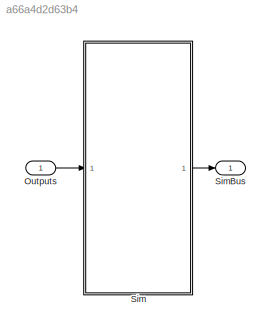
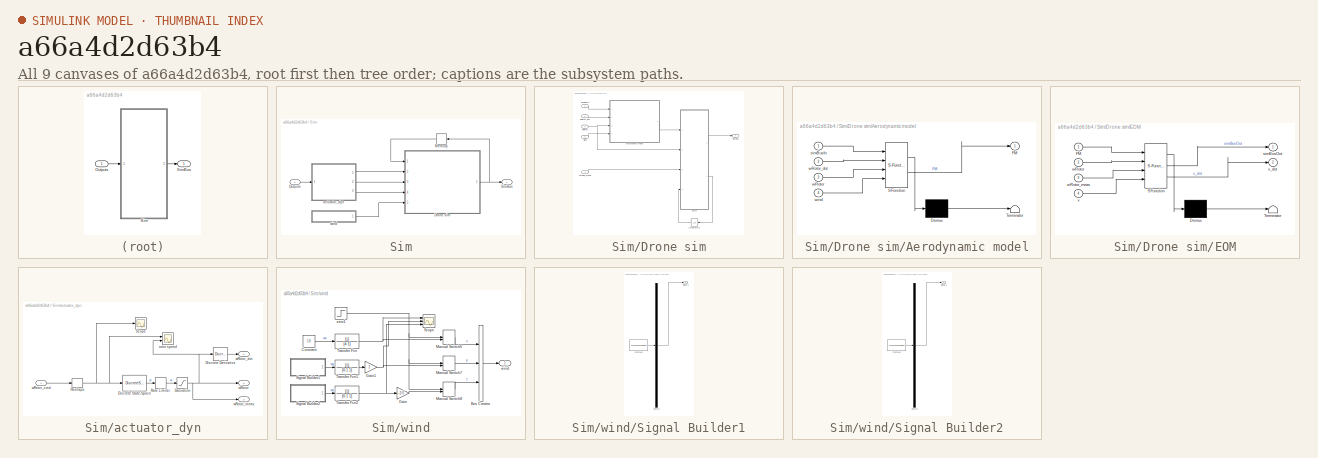
[diagram: thumbnail index - all 9 canvases of the model, root first then tree order]
MODEL slx_a66a4d2d63b4
KIND model
CONFIG AbsTol = auto
CONFIG EnableMultiTasking = off
CONFIG FixedStep = 1/simVars.freq
CONFIG MaxStep = auto
CONFIG MinStep = auto
CONFIG RelTol = 1e-3
CONFIG SampleTimeConstraint = Unconstrained
CONFIG SolverName = ode4
CONFIG StartTime = 0.0
CONFIG StopTime = 10.0
BLOCK [Inport] Outputs
BLOCK [SubSystem] Sim
  Ports = [1, 1]
  RequestExecContextInheritance = off
BLOCK [SubSystem] Sim/Drone sim
  Ports = [5, 1]
  RequestExecContextInheritance = off
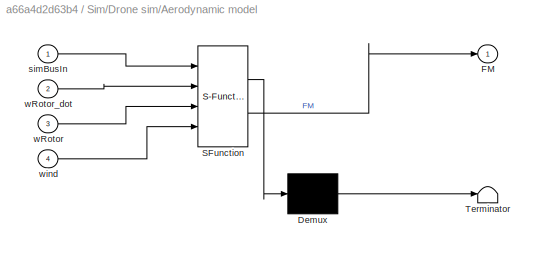
BLOCK [SubSystem] Sim/Drone sim/Aerodynamic model
  ErrorFcn = Stateflow.Translate.translate
  PermitHierarchicalResolution = ExplicitOnly
  Ports = [4, 1]
  RequestExecContextInheritance = off
  SFBlockType = MATLAB Function
  TreatAsAtomicUnit = on
BLOCK [Demux] Sim/Drone sim/Aerodynamic model/ Demux 
  Outputs = 1
  Ports = [1, 1]
BLOCK [S-Function] Sim/Drone sim/Aerodynamic model/ SFunction 
  EnableBusSupport = on
  FunctionName = sf_sfun
  Parameters = simVars
  PortCounts = [4 2]
  Ports = [4, 2]
  SFcnIsStateOwnerBlock = off
  SFunctionDeploymentMode = off
  Tag = Stateflow S-Function 2
BLOCK [Terminator] Sim/Drone sim/Aerodynamic model/ Terminator 
BLOCK [Outport] Sim/Drone sim/Aerodynamic model/FM
  VectorParamsAs1DForOutWhenUnconnected = off
BLOCK [Inport] Sim/Drone sim/Aerodynamic model/simBusIn
BLOCK [Inport] Sim/Drone sim/Aerodynamic model/wRotor
  Port = 3
BLOCK [Inport] Sim/Drone sim/Aerodynamic model/wRotor_dot
  Port = 2
BLOCK [Inport] Sim/Drone sim/Aerodynamic model/wind
  Port = 4
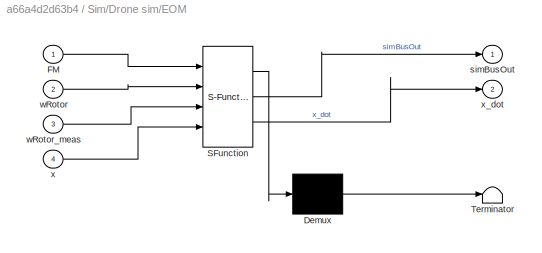
BLOCK [SubSystem] Sim/Drone sim/EOM
  ErrorFcn = Stateflow.Translate.translate
  PermitHierarchicalResolution = ExplicitOnly
  Ports = [4, 2]
  RequestExecContextInheritance = off
  SFBlockType = MATLAB Function
  TreatAsAtomicUnit = on
BLOCK [Demux] Sim/Drone sim/EOM/ Demux 
  Outputs = 1
  Ports = [1, 1]
BLOCK [S-Function] Sim/Drone sim/EOM/ SFunction 
  EnableBusSupport = on
  FunctionName = sf_sfun
  Parameters = simVars
  PortCounts = [4 3]
  Ports = [4, 3]
  SFcnIsStateOwnerBlock = off
  SFunctionDeploymentMode = off
  Tag = Stateflow S-Function 1
BLOCK [Terminator] Sim/Drone sim/EOM/ Terminator 
BLOCK [Inport] Sim/Drone sim/EOM/FM
BLOCK [Outport] Sim/Drone sim/EOM/simBusOut
  VectorParamsAs1DForOutWhenUnconnected = off
BLOCK [Inport] Sim/Drone sim/EOM/wRotor
  Port = 2
BLOCK [Inport] Sim/Drone sim/EOM/wRotor_meas
  Port = 3
BLOCK [Inport] Sim/Drone sim/EOM/x
  Port = 4
BLOCK [Outport] Sim/Drone sim/EOM/x_dot
  Port = 2
  VectorParamsAs1DForOutWhenUnconnected = off
BLOCK [Integrator] Sim/Drone sim/Integrator3
  InitialCondition = [simVars.pos0,simVars.vel0,simVars.q0,simVars.omega0,simVars.att0]
  LowerSaturationLimit = -100
  NameLocation = top
  Ports = [1, 1]
  UpperSaturationLimit = 100
BLOCK [Outport] Sim/Drone sim/SimBus
  VectorParamsAs1DForOutWhenUnconnected = off
BLOCK [Inport] Sim/Drone sim/omega_meas
  Port = 4
BLOCK [Inport] Sim/Drone sim/simBusIn
BLOCK [Inport] Sim/Drone sim/wRotor
  Port = 3
BLOCK [Inport] Sim/Drone sim/wRotor_dot
  Port = 2
BLOCK [Inport] Sim/Drone sim/wind
  Port = 5
BLOCK [Memory] Sim/Memory
  NameLocation = top
BLOCK [Inport] Sim/Outputs
BLOCK [Outport] Sim/SimBus
  OutDataTypeStr = Bus: simBus
  VectorParamsAs1DForOutWhenUnconnected = off
BLOCK [SubSystem] Sim/actuator_dyn
  Ports = [1, 3]
  RequestExecContextInheritance = off
BLOCK [Reference] Sim/actuator_dyn/Discrete Derivative  REF=simulink/Discrete/Discrete Derivative
  Ports = [1, 1]
  SourceBlock = simulink/Discrete/Discrete Derivative
  SourceProductBaseCode = SL
  SourceType = Discrete Derivative
BLOCK [DiscreteStateSpace] Sim/actuator_dyn/Discrete State-Space
  A = (1-1/simVars.actuator.t_w*1/simVars.freq)*eye(4)
  B = 1/simVars.actuator.t_w*1/simVars.freq*eye(4)
  C = eye(4)
  D = zeros(4)
  InitialCondition = simVars.actuator.w0
  SampleTime = -1
BLOCK [RateLimiter] Sim/actuator_dyn/Rate Limiter
  FallingSlewLimit = simVars.actuator.rateFall
  InitialCondition = simVars.actuator.w0
  LinearizeAsGain = off
  RisingSlewLimit = simVars.actuator.rateRise
  SampleTimeMode = inherited
BLOCK [Reshape] Sim/actuator_dyn/Reshape
  Ports = [1, 1]
BLOCK [Saturate] Sim/actuator_dyn/Saturation
  LowerLimit = simVars.actuator.wMin
  UpperLimit = simVars.actuator.wMax
BLOCK [Scope] Sim/actuator_dyn/Scope
  Floating = off
  NumInputPorts = 1
  Ports = [1]
  ScopeSpecificationString = Simulink.scopes.TimeScopeBlockCfg('CurrentConfiguration', extmgr.ConfigurationSet(extmgr.Configuration('Core','General UI',true),extmgr.Configuration('Core','Source UI',true),extmgr.Configuration('Sources','WiredSimulink',true,'DataLoggingVariableName','ScopeData1'),extmgr.Configuration('Visuals','Time Domain',true,'SerializedDisplays',{struct('MinYLimReal','280.05277','MaxYLimReal','1264.25253','...<+1470ch>
BLOCK [Scope] Sim/actuator_dyn/rotor speed
  Floating = off
  NumInputPorts = 2
  Ports = [2]
  ScopeSpecificationString = Simulink.scopes.TimeScopeBlockCfg('CurrentConfiguration', extmgr.ConfigurationSet(extmgr.Configuration('Core','General UI',true),extmgr.Configuration('Core','Source UI',true),extmgr.Configuration('Sources','WiredSimulink',true,'DataLoggingVariableName','ScopeData2'),extmgr.Configuration('Visuals','Time Domain',true,'SerializedDisplays',{struct('MinYLimReal','-129.90985','MaxYLimReal','1169.18866',...<+2127ch>
BLOCK [Outport] Sim/actuator_dyn/wRotor
  Port = 2
  VectorParamsAs1DForOutWhenUnconnected = off
BLOCK [Inport] Sim/actuator_dyn/wRotor_cmd
BLOCK [Outport] Sim/actuator_dyn/wRotor_dot
  VectorParamsAs1DForOutWhenUnconnected = off
BLOCK [Outport] Sim/actuator_dyn/wRotor_meas
  Port = 3
  VectorParamsAs1DForOutWhenUnconnected = off
BLOCK [SubSystem] Sim/wind
  Ports = [0, 1]
  RequestExecContextInheritance = off
BLOCK [BusCreator] Sim/wind/Bus Creator
  DisplayOption = bar
  InheritFromInputs = on
  Inputs = 3
  OutDataTypeStr = Bus: windBus
  Ports = [3, 1]
BLOCK [Constant] Sim/wind/Constant
  Value = 10
BLOCK [Gain] Sim/wind/Gain
  Gain = -2/5
BLOCK [Gain] Sim/wind/Gain1
  Gain = 2
BLOCK [ManualSwitch] Sim/wind/Manual Switch6
BLOCK [ManualSwitch] Sim/wind/Manual Switch7
BLOCK [ManualSwitch] Sim/wind/Manual Switch8
BLOCK [Scope] Sim/wind/Scope
  Floating = off
  NumInputPorts = 3
  Ports = [3]
  ScopeSpecificationString = Simulink.scopes.TimeScopeBlockCfg('CurrentConfiguration', extmgr.ConfigurationSet(extmgr.Configuration('Core','General UI',true),extmgr.Configuration('Core','Source UI',true),extmgr.Configuration('Sources','WiredSimulink',true,'DataLoggingVariableName','ScopeData11','DataLoggingSaveFormat','Array','DataLoggingDecimation','1','DataLoggingDecimateData',true),extmgr.Configuration('Visuals','Time Doma...<+3033ch>
BLOCK [SubSystem] Sim/wind/Signal Builder1
  ClipboardFcn = sigbuilder_block('clipboard');
  CloseFcn = sigbuilder_block('close');
  ContinueFcn = sigbuilder_block('continue');
  CopyFcn = sigbuilder_block('copy');
  DeleteFcn = sigbuilder_block('delete');
  LoadFcn = sigbuilder_block('load');
  MaskHideContents = on
  ModelCloseFcn = sigbuilder_block('modelClose');
  NameChangeFcn = sigbuilder_block('namechange');
  OpenFcn = sigbuilder_block('open',[196.5 289.5 550.5 399.75 ]);
  PauseFcn = sigbuilder_block('pause');
  Ports = [0, 1]
  PreSaveFcn = sigbuilder_block('preSave');
  RequestExecContextInheritance = off
  StartFcn = sigbuilder_block('start');
  StopFcn = sigbuilder_block('stop');
  Tag = STV Subsys
BLOCK [Demux] Sim/wind/Signal Builder1/Demux
  DisplayOption = none
  Outputs = 1
  Ports = [1, 1]
  Tag = STV Demux
BLOCK [FromWorkspace] Sim/wind/Signal Builder1/FromWs
  Tag = STV FromWs
  VariableName = tuvar
BLOCK [Outport] Sim/wind/Signal Builder1/Signal 1
  Tag = STV Outport
  VectorParamsAs1DForOutWhenUnconnected = off
BLOCK [SubSystem] Sim/wind/Signal Builder2
  ClipboardFcn = sigbuilder_block('clipboard');
  CloseFcn = sigbuilder_block('close');
  ContinueFcn = sigbuilder_block('continue');
  CopyFcn = sigbuilder_block('copy');
  DeleteFcn = sigbuilder_block('delete');
  LoadFcn = sigbuilder_block('load');
  MaskHideContents = on
  ModelCloseFcn = sigbuilder_block('modelClose');
  NameChangeFcn = sigbuilder_block('namechange');
  OpenFcn = sigbuilder_block('open',[229.5 273.75 550.5 399.75 ]);
  PauseFcn = sigbuilder_block('pause');
  Ports = [0, 1]
  PreSaveFcn = sigbuilder_block('preSave');
  RequestExecContextInheritance = off
  StartFcn = sigbuilder_block('start');
  StopFcn = sigbuilder_block('stop');
  Tag = STV Subsys
BLOCK [Demux] Sim/wind/Signal Builder2/Demux
  DisplayOption = none
  Outputs = 1
  Ports = [1, 1]
  Tag = STV Demux
BLOCK [FromWorkspace] Sim/wind/Signal Builder2/FromWs
  Tag = STV FromWs
  VariableName = tuvar
BLOCK [Outport] Sim/wind/Signal Builder2/Signal 1
  Tag = STV Outport
  VectorParamsAs1DForOutWhenUnconnected = off
BLOCK [TransferFcn] Sim/wind/Transfer Fcn
  Denominator = [4 1]
BLOCK [TransferFcn] Sim/wind/Transfer Fcn1
  Denominator = [0.1 1]
BLOCK [TransferFcn] Sim/wind/Transfer Fcn2
  Denominator = [0.1 1]
BLOCK [Outport] Sim/wind/wind
  VectorParamsAs1DForOutWhenUnconnected = off
BLOCK [Step] Sim/wind/zero1
  After = 0
  SampleTime = 0
  Time = 5
BLOCK [Outport] SimBus
  OutDataTypeStr = Bus: simBus
  VectorParamsAs1DForOutWhenUnconnected = off
LINE Outputs:1 -> Sim:1
LINE Sim/Drone sim/Aerodynamic model:1 -> Sim/Drone sim/EOM:1
LINE Sim/Drone sim/EOM:1 -> Sim/Drone sim/SimBus:1
LINE Sim/Drone sim/EOM:2 -> Sim/Drone sim/Integrator3:1
LINE Sim/Drone sim/Integrator3:1 -> Sim/Drone sim/EOM:4
LINE Sim/Drone sim/omega_meas:1 -> Sim/Drone sim/EOM:3
LINE Sim/Drone sim/simBusIn:1 -> Sim/Drone sim/Aerodynamic model:1
NET Sim/Drone sim/wRotor:1 -> Sim/Drone sim/Aerodynamic model:3, Sim/Drone sim/EOM:2
LINE Sim/Drone sim/wRotor_dot:1 -> Sim/Drone sim/Aerodynamic model:2
LINE Sim/Drone sim/wind:1 -> Sim/Drone sim/Aerodynamic model:4
NET Sim/Drone sim:1 -> Sim/Memory:1, Sim/SimBus:1
LINE Sim/Memory:1 -> Sim/Drone sim:1
LINE Sim/Outputs:1 -> Sim/actuator_dyn:1
LINE Sim/actuator_dyn/Discrete Derivative:1 -> Sim/actuator_dyn/wRotor_dot:1
LINE Sim/actuator_dyn/Discrete State-Space:1 -> Sim/actuator_dyn/Rate Limiter:1
LINE Sim/actuator_dyn/Rate Limiter:1 -> Sim/actuator_dyn/Saturation:1
NET Sim/actuator_dyn/Reshape:1 -> Sim/actuator_dyn/Discrete State-Space:1, Sim/actuator_dyn/Scope:1, Sim/actuator_dyn/rotor speed:1
NET Sim/actuator_dyn/Saturation:1 -> Sim/actuator_dyn/Discrete Derivative:1, Sim/actuator_dyn/rotor speed:2, Sim/actuator_dyn/wRotor:1, Sim/actuator_dyn/wRotor_meas:1
LINE Sim/actuator_dyn/wRotor_cmd:1 -> Sim/actuator_dyn/Reshape:1
LINE Sim/actuator_dyn:1 -> Sim/Drone sim:2
LINE Sim/actuator_dyn:2 -> Sim/Drone sim:3
LINE Sim/actuator_dyn:3 -> Sim/Drone sim:4
LINE Sim/wind/Bus Creator:1 -> Sim/wind/wind:1
LINE Sim/wind/Constant:1 -> Sim/wind/Transfer Fcn:1
NET Sim/wind/Gain1:1 -> Sim/wind/Manual Switch7:2, Sim/wind/Scope:2
LINE Sim/wind/Gain:1 -> Sim/wind/Manual Switch8:2
LINE Sim/wind/Manual Switch6:1 -> Sim/wind/Bus Creator:1
LINE Sim/wind/Manual Switch7:1 -> Sim/wind/Bus Creator:2
LINE Sim/wind/Manual Switch8:1 -> Sim/wind/Bus Creator:3
LINE Sim/wind/Signal Builder1:1 -> Sim/wind/Transfer Fcn1:1
LINE Sim/wind/Signal Builder2:1 -> Sim/wind/Transfer Fcn2:1
LINE Sim/wind/Transfer Fcn1:1 -> Sim/wind/Gain1:1
NET Sim/wind/Transfer Fcn2:1 -> Sim/wind/Gain:1, Sim/wind/Scope:3
NET Sim/wind/Transfer Fcn:1 -> Sim/wind/Manual Switch6:2, Sim/wind/Scope:1
NET Sim/wind/zero1:1 -> Sim/wind/Manual Switch6:1, Sim/wind/Manual Switch7:1, Sim/wind/Manual Switch8:1
LINE Sim/wind:1 -> Sim/Drone sim:5
LINE Sim:1 -> SimBus:1
note: NET lines group one-source signal fan-out (src -> all destinations, sorted); 1:1 wires keep LINE
CHART Sim/Drone sim/EOM states=1 transitions=1
  STATE_LABEL 'eML_blk_kernel()'
  STATE_LABEL 'SCRIPT:\nfunction [simBusOut,x_dot] = EOM(FM, wRotor, wRotor_meas, x, simVars)\n[simBusOut, x_dot] = EOMQuat(FM,wRotor,wRotor_meas,x,simVars);'
CHART Sim/Drone sim/Aerodynamic model states=1 transitions=1
  STATE_LABEL 'eML_blk_kernel()'
  STATE_LABEL "SCRIPT:\nfunction FM = aeroModel(simBusIn, wRotor_dot, wRotor, wind, simVars)\n\n%% Calculate some other vars\nM_gyro = simVars.drone.signr*(simVars.drone.Ip*[0 0 wRotor_dot(1)]'+ simVars.drone.Ip*[0 0 -wRotor_dot(2)]'+ simVars.drone.Ip*[0 0 wRotor_dot(3)]'+ simVars.drone.Ip*[0 0 -wRotor_dot(4)]'...\n         + cross(simBusIn.omegaB',simVars.drone.Ip*[0 0 wRotor(1)]'+simVars.drone.Ip*[0 0 -wRotor(2)]'+...<+647ch>"
CHART  states=0 transitions=0
CHART  states=0 transitions=0
